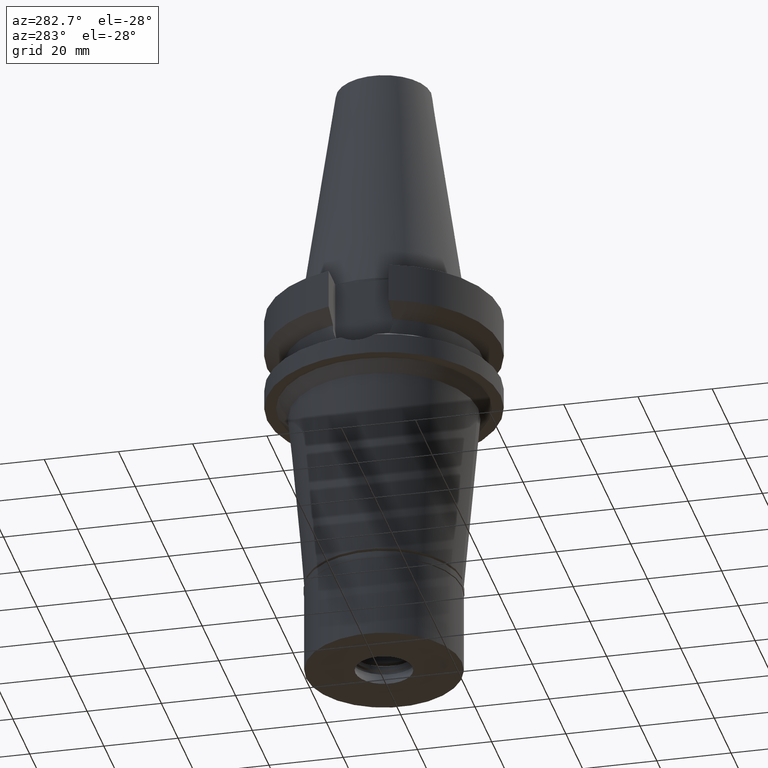
[diagram: clean part render]
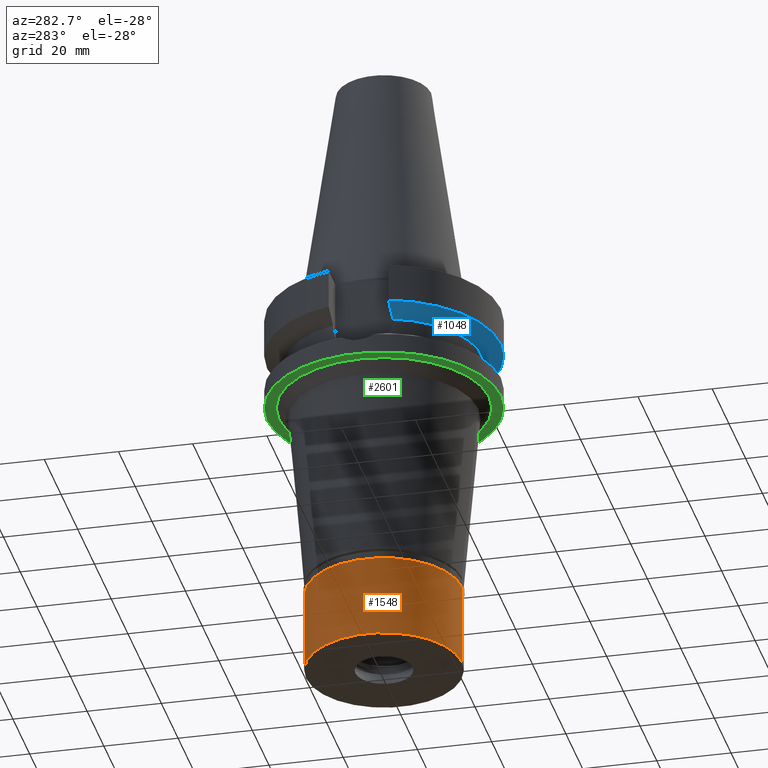
[diagram: same view with three faces highlighted in distinct colors, each labeled with its STEP entity id]
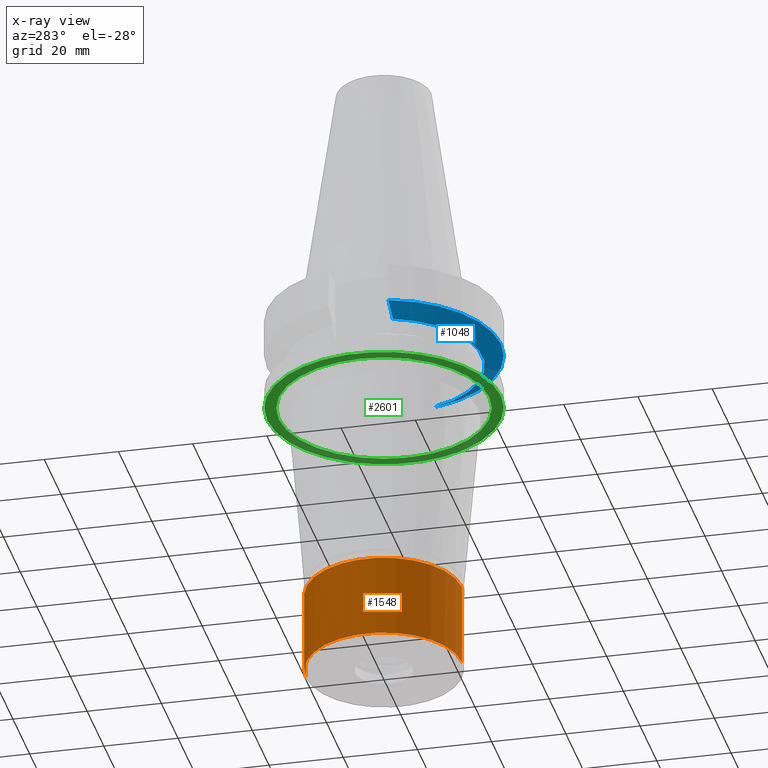
[diagram: x-ray of the same camera — body ghosted, the three highlighted faces saturated]
A machine part, auxiliary view with three faces highlighted in distinct colors.
The next image is the same camera in x-ray (body ghosted, the three faces saturated) — at least one of them is partly hidden behind the body in this view.
Their STEP definitions:

[orange] entity #1548 — the highlighted cylindrical surface (partial cylindrical patch) has radius 21 mm, axis along (0, 0, -1).
#160 = VECTOR ( 'NONE', #2517, 1000.000000000000000 ) ;
#212 = FACE_OUTER_BOUND ( 'NONE', #3139, .T. ) ;
#222 = EDGE_CURVE ( 'NONE', #571, #1098, #2481, .T. ) ;
#260 = CARTESIAN_POINT ( 'NONE',  ( 0.0000000000000000000, 0.0000000000000000000, -24.29999999999999716 ) ) ;
#276 = CARTESIAN_POINT ( 'NONE',  ( 0.0000000000000000000, -21.00000000000000000, -24.29999999999999716 ) ) ;
#336 = LINE ( 'NONE', #550, #160 ) ;
#413 = AXIS2_PLACEMENT_3D ( 'NONE', #2654, #2388, #1151 ) ;
#509 = AXIS2_PLACEMENT_3D ( 'NONE', #260, #1223, #590 ) ;
#550 = CARTESIAN_POINT ( 'NONE',  ( 0.0000000000000000000, 21.00000000000000000, -2.000000000000000000 ) ) ;
#571 = VERTEX_POINT ( 'NONE', #1401 ) ;
#590 = DIRECTION ( 'NONE',  ( 0.0000000000000000000, 1.000000000000000000, 0.0000000000000000000 ) ) ;
#1030 = CARTESIAN_POINT ( 'NONE',  ( 0.0000000000000000000, -21.00000000000000000, -2.000000000000000000 ) ) ;
#1098 = VERTEX_POINT ( 'NONE', #276 ) ;
#1151 = DIRECTION ( 'NONE',  ( 0.0000000000000000000, -1.000000000000000000, 0.0000000000000000000 ) ) ;
#1218 = EDGE_CURVE ( 'NONE', #2829, #1098, #2653, .T. ) ;
#1223 = DIRECTION ( 'NONE',  ( 0.0000000000000000000, 0.0000000000000000000, 1.000000000000000000 ) ) ;
#1327 = VECTOR ( 'NONE', #1518, 1000.000000000000000 ) ;
#1401 = CARTESIAN_POINT ( 'NONE',  ( 0.0000000000000000000, -21.00000000000000000, -2.000000000000000000 ) ) ;
#1479 = ORIENTED_EDGE ( 'NONE', *, *, #2222, .T. ) ;
#1518 = DIRECTION ( 'NONE',  ( 0.0000000000000000000, 0.0000000000000000000, -1.000000000000000000 ) ) ;
#1548 = ADVANCED_FACE ( 'NONE', ( #212 ), #2158, .T. ) ;
#1564 = AXIS2_PLACEMENT_3D ( 'NONE', #1600, #2634, #1869 ) ;
#1600 = CARTESIAN_POINT ( 'NONE',  ( 0.0000000000000000000, 0.0000000000000000000, -2.000000000000000000 ) ) ;
#1850 = CARTESIAN_POINT ( 'NONE',  ( 0.0000000000000000000, 21.00000000000000000, -2.000000000000000000 ) ) ;
#1869 = DIRECTION ( 'NONE',  ( 0.0000000000000000000, -1.000000000000000000, 0.0000000000000000000 ) ) ;
#1973 = EDGE_CURVE ( 'NONE', #571, #2356, #2960, .T. ) ;
#1975 = ORIENTED_EDGE ( 'NONE', *, *, #1973, .T. ) ;
#2000 = CARTESIAN_POINT ( 'NONE',  ( 0.0000000000000000000, 21.00000000000000000, -24.29999999999999716 ) ) ;
#2158 = CYLINDRICAL_SURFACE ( 'NONE', #413, 21.00000000000000000 ) ;
#2222 = EDGE_CURVE ( 'NONE', #2356, #2829, #336, .T. ) ;
#2304 = ORIENTED_EDGE ( 'NONE', *, *, #222, .F. ) ;
#2356 = VERTEX_POINT ( 'NONE', #1850 ) ;
#2388 = DIRECTION ( 'NONE',  ( 0.0000000000000000000, 0.0000000000000000000, -1.000000000000000000 ) ) ;
#2481 = LINE ( 'NONE', #1030, #1327 ) ;
#2517 = DIRECTION ( 'NONE',  ( 0.0000000000000000000, 0.0000000000000000000, -1.000000000000000000 ) ) ;
#2634 = DIRECTION ( 'NONE',  ( 0.0000000000000000000, 0.0000000000000000000, -1.000000000000000000 ) ) ;
#2653 = CIRCLE ( 'NONE', #509, 21.00000000000000000 ) ;
#2654 = CARTESIAN_POINT ( 'NONE',  ( 0.0000000000000000000, 0.0000000000000000000, 0.0000000000000000000 ) ) ;
#2655 = ORIENTED_EDGE ( 'NONE', *, *, #1218, .T. ) ;
#2829 = VERTEX_POINT ( 'NONE', #2000 ) ;
#2960 = CIRCLE ( 'NONE', #1564, 21.00000000000000000 ) ;
#3139 = EDGE_LOOP ( 'NONE', ( #2655, #2304, #1975, #1479 ) ) ;

[blue] entity #1048 — the highlighted conical surface has half-angle 60 deg.
#223 = VERTEX_POINT ( 'NONE', #602 ) ;
#227 = CARTESIAN_POINT ( 'NONE',  ( 26.83757724594258676, -8.050003173596765649, -13.57772968350566778 ) ) ;
#499 = CARTESIAN_POINT ( 'NONE',  ( -28.57292327358449313, -8.049998556115422588, -12.61549606483820085 ) ) ;
#602 = CARTESIAN_POINT ( 'NONE',  ( 25.24772266958000344, -8.050000000000000711, -14.45225699861000024 ) ) ;
#676 = VERTEX_POINT ( 'NONE', #1435 ) ;
#750 = EDGE_CURVE ( 'NONE', #223, #676, #903, .T. ) ;
#753 = AXIS2_PLACEMENT_3D ( 'NONE', #988, #2683, #2230 ) ;
#886 = CARTESIAN_POINT ( 'NONE',  ( 0.0000000000000000000, 1.065333950388000029E-14, -11.56550565266999975 ) ) ;
#903 = CIRCLE ( 'NONE', #2792, 26.50000000000000711 ) ;
#947 = CARTESIAN_POINT ( 'NONE',  ( 0.0000000000000000000, 1.065333950388000029E-14, -14.45225699861000024 ) ) ;
#988 = CARTESIAN_POINT ( 'NONE',  ( 0.0000000000000000000, 1.065333950388000029E-14, -13.00888132564000088 ) ) ;
#1048 = ADVANCED_FACE ( 'NONE', ( #1715 ), #1621, .T. ) ;
#1178 = DIRECTION ( 'NONE',  ( 0.0000000000000000000, 0.0000000000000000000, -1.000000000000000000 ) ) ;
#1186 = CARTESIAN_POINT ( 'NONE',  ( 28.57294946141576375, -8.050008284160840688, -12.61547993375081056 ) ) ;
#1195 = ORIENTED_EDGE ( 'NONE', *, *, #1586, .F. ) ;
#1313 = ORIENTED_EDGE ( 'NONE', *, *, #750, .F. ) ;
#1359 = ORIENTED_EDGE ( 'NONE', *, *, #1723, .T. ) ;
#1435 = CARTESIAN_POINT ( 'NONE',  ( -25.24772413164999918, -8.049995414398999571, -14.45229203857999956 ) ) ;
#1443 = CARTESIAN_POINT ( 'NONE',  ( 25.24772266958000344, -8.050000000000000711, -14.45225699861000024 ) ) ;
#1449 = ORIENTED_EDGE ( 'NONE', *, *, #3116, .T. ) ;
#1458 = CARTESIAN_POINT ( 'NONE',  ( -30.45402291373999759, -8.049999277588000268, -11.56551215928000076 ) ) ;
#1586 = EDGE_CURVE ( 'NONE', #2524, #2299, #2028, .T. ) ;
#1621 = CONICAL_SURFACE ( 'NONE', #753, 29.00000000000000000, 1.047197551196400456 ) ;
#1622 = DIRECTION ( 'NONE',  ( 0.0000000000000000000, 0.0000000000000000000, 1.000000000000000000 ) ) ;
#1715 = FACE_OUTER_BOUND ( 'NONE', #2806, .T. ) ;
#1723 = EDGE_CURVE ( 'NONE', #2524, #676, #2260, .T. ) ;
#1823 = AXIS2_PLACEMENT_3D ( 'NONE', #886, #1622, #2604 ) ;
#1948 = CARTESIAN_POINT ( 'NONE',  ( -25.24772413164999918, -8.049995414398999571, -14.45229203857999956 ) ) ;
#2028 = CIRCLE ( 'NONE', #1823, 31.50000000000000000 ) ;
#2230 = DIRECTION ( 'NONE',  ( 0.0000000000000000000, 1.000000000000000000, 0.0000000000000000000 ) ) ;
#2260 = B_SPLINE_CURVE_WITH_KNOTS ( 'NONE', 3,
 ( #1458, #499, #2713, #1948 ),
 .UNSPECIFIED., .F., .F.,
 ( 4, 4 ),
 ( 0.0000000000000000000, 1.000000000000000000 ),
 .UNSPECIFIED. ) ;
#2299 = VERTEX_POINT ( 'NONE', #2355 ) ;
#2355 = CARTESIAN_POINT ( 'NONE',  ( 30.45402272279000044, -8.049999999999000622, -11.56550565266999975 ) ) ;
#2391 = CARTESIAN_POINT ( 'NONE',  ( 30.45402272279000044, -8.049999999999000622, -11.56550565266999975 ) ) ;
#2459 = CARTESIAN_POINT ( 'NONE',  ( -30.45402291373999759, -8.049999277588000268, -11.56551215928000076 ) ) ;
#2524 = VERTEX_POINT ( 'NONE', #2459 ) ;
#2604 = DIRECTION ( 'NONE',  ( 0.0000000000000000000, -1.000000000000000000, 0.0000000000000000000 ) ) ;
#2648 = DIRECTION ( 'NONE',  ( 0.9527442516822307583, -0.3037735849057093818, 0.0000000000000000000 ) ) ;
#2683 = DIRECTION ( 'NONE',  ( 0.0000000000000000000, 0.0000000000000000000, 1.000000000000000000 ) ) ;
#2713 = CARTESIAN_POINT ( 'NONE',  ( -26.83754614237341585, -8.049990818642088541, -13.57774889126738671 ) ) ;
#2779 = B_SPLINE_CURVE_WITH_KNOTS ( 'NONE', 3,
 ( #1443, #227, #1186, #2391 ),
 .UNSPECIFIED., .F., .F.,
 ( 4, 4 ),
 ( 0.0000000000000000000, 1.000000000000000000 ),
 .UNSPECIFIED. ) ;
#2792 = AXIS2_PLACEMENT_3D ( 'NONE', #947, #1178, #2648 ) ;
#2806 = EDGE_LOOP ( 'NONE', ( #1359, #1313, #1449, #1195 ) ) ;
#3116 = EDGE_CURVE ( 'NONE', #223, #2299, #2779, .T. ) ;

[green] entity #2601 — the highlighted planar face has unit normal (0, 0, -1).
#8 = VERTEX_POINT ( 'NONE', #299 ) ;
#130 = DIRECTION ( 'NONE',  ( 0.0000000000000000000, 0.0000000000000000000, -1.000000000000000000 ) ) ;
#144 = ORIENTED_EDGE ( 'NONE', *, *, #1254, .F. ) ;
#258 = AXIS2_PLACEMENT_3D ( 'NONE', #2003, #3006, #2751 ) ;
#289 = ORIENTED_EDGE ( 'NONE', *, *, #2579, .F. ) ;
#299 = CARTESIAN_POINT ( 'NONE',  ( 0.0000000000000000000, -31.50000000000000000, -27.00000000000000000 ) ) ;
#357 = DIRECTION ( 'NONE',  ( 0.0000000000000000000, 1.000000000000000000, 0.0000000000000000000 ) ) ;
#564 = EDGE_CURVE ( 'NONE', #919, #999, #3016, .T. ) ;
#606 = CIRCLE ( 'NONE', #1767, 28.36568430994000067 ) ;
#751 = DIRECTION ( 'NONE',  ( 0.0000000000000000000, 0.0000000000000000000, 1.000000000000000000 ) ) ;
#919 = VERTEX_POINT ( 'NONE', #1908 ) ;
#948 = FACE_BOUND ( 'NONE', #2873, .T. ) ;
#962 = PLANE ( 'NONE',  #1373 ) ;
#999 = VERTEX_POINT ( 'NONE', #2668 ) ;
#1076 = CARTESIAN_POINT ( 'NONE',  ( 0.0000000000000000000, 31.50000000000000000, -27.00000000000000000 ) ) ;
#1254 = EDGE_CURVE ( 'NONE', #999, #919, #606, .T. ) ;
#1373 = AXIS2_PLACEMENT_3D ( 'NONE', #1913, #2665, #1931 ) ;
#1661 = DIRECTION ( 'NONE',  ( 0.0000000000000000000, 0.0000000000000000000, -1.000000000000000000 ) ) ;
#1764 = CARTESIAN_POINT ( 'NONE',  ( 0.0000000000000000000, 0.0000000000000000000, -27.00000000000000000 ) ) ;
#1767 = AXIS2_PLACEMENT_3D ( 'NONE', #1824, #130, #357 ) ;
#1824 = CARTESIAN_POINT ( 'NONE',  ( 0.0000000000000000000, 0.0000000000000000000, -27.00000000000000000 ) ) ;
#1865 = VERTEX_POINT ( 'NONE', #1076 ) ;
#1908 = CARTESIAN_POINT ( 'NONE',  ( 0.0000000000000000000, -28.36568430994000067, -27.00000000000000000 ) ) ;
#1913 = CARTESIAN_POINT ( 'NONE',  ( 0.0000000000000000000, 0.0000000000000000000, -27.00000000000000000 ) ) ;
#1931 = DIRECTION ( 'NONE',  ( 0.0000000000000000000, -1.000000000000000000, 0.0000000000000000000 ) ) ;
#2003 = CARTESIAN_POINT ( 'NONE',  ( 0.0000000000000000000, 2.125313287579999899E-14, -27.00000000000000000 ) ) ;
#2032 = CIRCLE ( 'NONE', #258, 31.50000000000000000 ) ;
#2081 = AXIS2_PLACEMENT_3D ( 'NONE', #1764, #1661, #2746 ) ;
#2089 = CIRCLE ( 'NONE', #2342, 31.50000000000000000 ) ;
#2236 = FACE_OUTER_BOUND ( 'NONE', #2345, .T. ) ;
#2342 = AXIS2_PLACEMENT_3D ( 'NONE', #2950, #751, #2896 ) ;
#2345 = EDGE_LOOP ( 'NONE', ( #3012, #289 ) ) ;
#2548 = ORIENTED_EDGE ( 'NONE', *, *, #564, .F. ) ;
#2579 = EDGE_CURVE ( 'NONE', #8, #1865, #2089, .T. ) ;
#2601 = ADVANCED_FACE ( 'NONE', ( #2236, #948 ), #962, .T. ) ;
#2665 = DIRECTION ( 'NONE',  ( 0.0000000000000000000, 0.0000000000000000000, -1.000000000000000000 ) ) ;
#2668 = CARTESIAN_POINT ( 'NONE',  ( 0.0000000000000000000, 28.36568430994000067, -27.00000000000000000 ) ) ;
#2678 = EDGE_CURVE ( 'NONE', #1865, #8, #2032, .T. ) ;
#2746 = DIRECTION ( 'NONE',  ( 0.0000000000000000000, -1.000000000000000000, 0.0000000000000000000 ) ) ;
#2751 = DIRECTION ( 'NONE',  ( 0.0000000000000000000, 1.000000000000000000, 0.0000000000000000000 ) ) ;
#2873 = EDGE_LOOP ( 'NONE', ( #144, #2548 ) ) ;
#2896 = DIRECTION ( 'NONE',  ( 0.0000000000000000000, -1.000000000000000000, 0.0000000000000000000 ) ) ;
#2950 = CARTESIAN_POINT ( 'NONE',  ( 0.0000000000000000000, 2.125313287579999899E-14, -27.00000000000000000 ) ) ;
#3006 = DIRECTION ( 'NONE',  ( 0.0000000000000000000, 0.0000000000000000000, 1.000000000000000000 ) ) ;
#3012 = ORIENTED_EDGE ( 'NONE', *, *, #2678, .F. ) ;
#3016 = CIRCLE ( 'NONE', #2081, 28.36568430994000067 ) ;